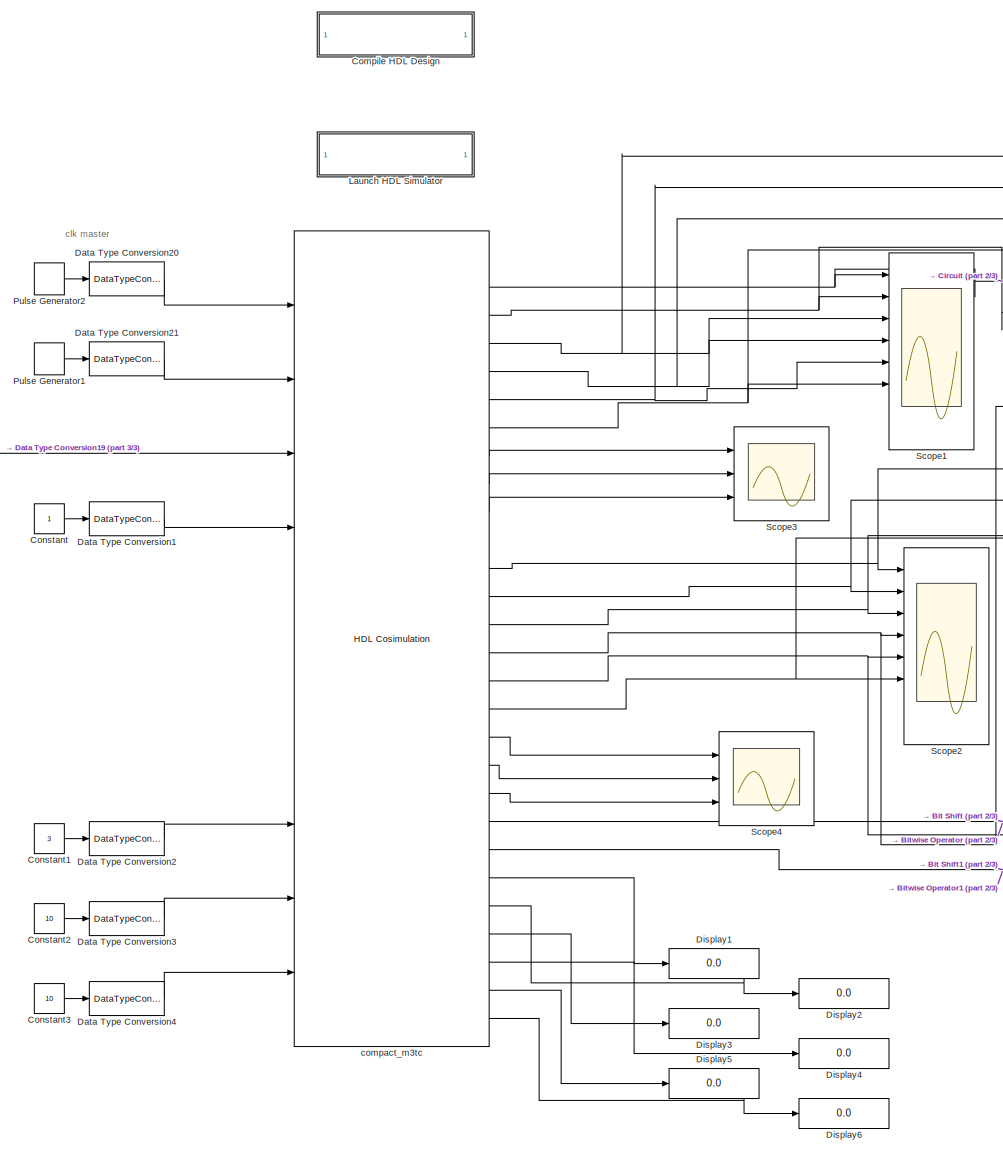
[diagram: root canvas - part 1/3, center side, full height]
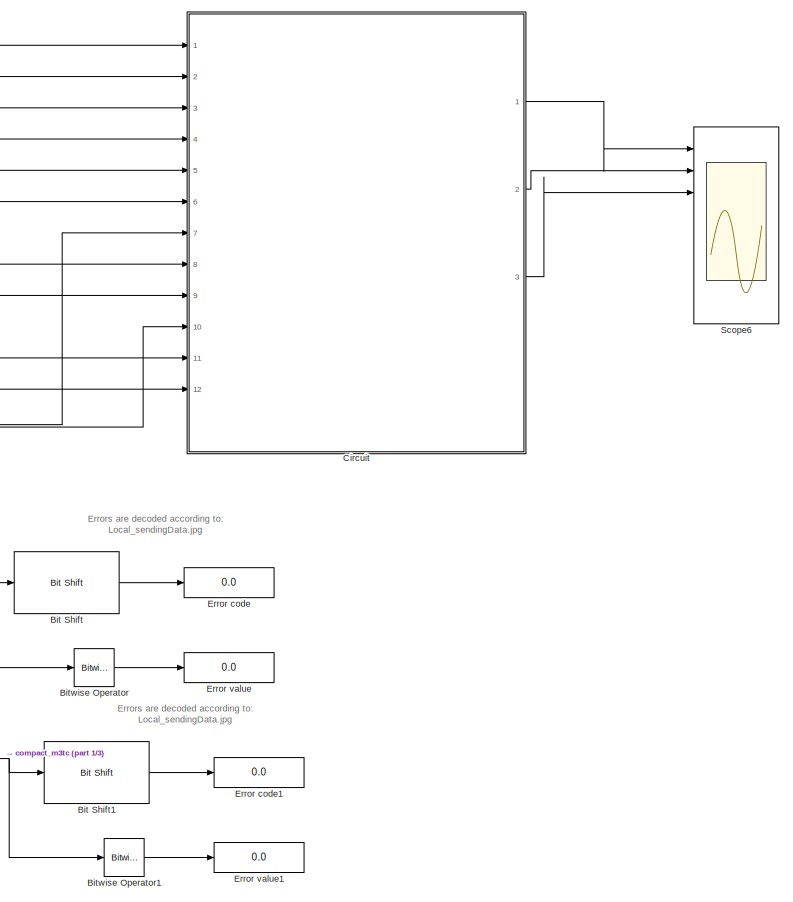
[diagram: root canvas - part 2/3, right side, full height]
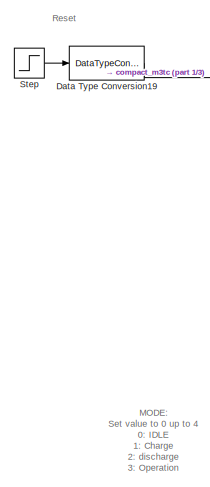
[diagram: root canvas - part 3/3, middle left region]
MODEL slx_5d1375948015
KIND model
CONFIG AbsTol = auto
CONFIG EnableMultiTasking = off
CONFIG FixedStep = 10e-9
CONFIG MaxStep = auto
CONFIG MinStep = auto
CONFIG RelTol = 1e-3
CONFIG SampleTimeConstraint = Unconstrained
CONFIG Solver = FixedStepDiscrete
CONFIG SolverName = FixedStepDiscrete
CONFIG StartTime = 0.0
CONFIG StopTime = 3000e-6
BLOCK [Reference] Bit Shift  REF=hdlsllib/HDL Operations/Bit Shift
  Ports = [1, 1]
  SourceBlock = hdlsllib/HDL Operations/Bit Shift
  SourceType = Bit Shift
BLOCK [Reference] Bit Shift1  REF=hdlsllib/HDL Operations/Bit Shift
  Ports = [1, 1]
  SourceBlock = hdlsllib/HDL Operations/Bit Shift
  SourceType = Bit Shift
BLOCK [Reference] Bitwise Operator  REF=simulink/Logic and Bit
Operations/Bitwise
Operator
  Ports = [1, 1]
  SourceBlock = simulink/Logic and Bit\nOperations/Bitwise\nOperator
  SourceType = Bitwise Operator
BLOCK [Reference] Bitwise Operator1  REF=simulink/Logic and Bit
Operations/Bitwise
Operator
  Ports = [1, 1]
  SourceBlock = simulink/Logic and Bit\nOperations/Bitwise\nOperator
  SourceType = Bitwise Operator
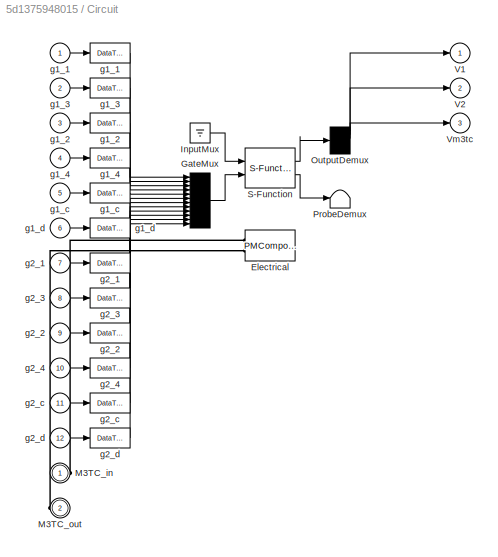
BLOCK [SubSystem] Circuit
  CopyFcn = plecs('sl', 203);
  DeleteFcn = plecs('sl', 205);
  DestroyFcn = plecs('sl', 207);
  ErrorFcn = plerrorfcn
  InitFcn = plecs('sl', 214);
  LoadFcn = plecs('sl', 200);
  NameChangeFcn = plecs('sl', 210);
  OpenFcn = plecs('sl', 202);
  Ports = [12, 3, 0, 0, 0, 1, 1]
  PostSaveFcn = plecs('sl', 201);
  PreCopyFcn = plecs('sl', 216);
  PreSaveFcn = plecs('sl', 211);
  RequestExecContextInheritance = off
  StartFcn = plecs('sl', 208);
  StopFcn = plecs('sl', 209);
  UndoDeleteFcn = plecs('sl', 206);
  Variant = off
BLOCK [PMComponent] Circuit/ Electrical 
  LConnTagsString = __newl1|__newl2
  LeftPortType = electrical
  PhysicalDomain = plecsdomain
  Ports = [0, 0, 0, 0, 0, 2]
  RightPortType = blob
BLOCK [Mux] Circuit/ GateMux 
  Inputs = [ 1 1 1 1 1 1 1 1 1 1 1 1 ]
  Ports = [12, 1]
BLOCK [Ground] Circuit/ InputMux 
BLOCK [Demux] Circuit/ OutputDemux 
  Outputs = [ 1 1 1 1 1 1 ]
  Ports = [1, 6]
BLOCK [Terminator] Circuit/ ProbeDemux 
BLOCK [S-Function] Circuit/ S-Function 
  EnableBusSupport = off
  FunctionName = plecs
  Ports = [2, 2]
  SFcnIsStateOwnerBlock = off
  SFunctionDeploymentMode = off
BLOCK [DataTypeConversion] Circuit/ g1_1 
BLOCK [DataTypeConversion] Circuit/ g1_2 
BLOCK [DataTypeConversion] Circuit/ g1_3 
BLOCK [DataTypeConversion] Circuit/ g1_4 
BLOCK [DataTypeConversion] Circuit/ g1_c 
BLOCK [DataTypeConversion] Circuit/ g1_d 
BLOCK [DataTypeConversion] Circuit/ g2_1 
BLOCK [DataTypeConversion] Circuit/ g2_2 
BLOCK [DataTypeConversion] Circuit/ g2_3 
BLOCK [DataTypeConversion] Circuit/ g2_4 
BLOCK [DataTypeConversion] Circuit/ g2_c 
BLOCK [DataTypeConversion] Circuit/ g2_d 
BLOCK [PMIOPort] Circuit/M3TC_in
  Port = 1
  Side = Left
BLOCK [PMIOPort] Circuit/M3TC_out
  Port = 2
  Side = Right
BLOCK [Outport] Circuit/V1
  IconDisplay = Port number
  PortDimensions = 1
BLOCK [Outport] Circuit/V2
  IconDisplay = Port number
  Port = 2
  PortDimensions = 1
BLOCK [Outport] Circuit/Vm3tc
  IconDisplay = Port number
  Port = 3
  PortDimensions = 1
BLOCK [Inport] Circuit/g1_1
  IconDisplay = Port number
  PortDimensions = 1
BLOCK [Inport] Circuit/g1_2
  IconDisplay = Port number
  Port = 3
  PortDimensions = 1
BLOCK [Inport] Circuit/g1_3
  IconDisplay = Port number
  Port = 2
  PortDimensions = 1
BLOCK [Inport] Circuit/g1_4
  IconDisplay = Port number
  Port = 4
  PortDimensions = 1
BLOCK [Inport] Circuit/g1_c
  IconDisplay = Port number
  Port = 5
  PortDimensions = 1
BLOCK [Inport] Circuit/g1_d
  IconDisplay = Port number
  Port = 6
  PortDimensions = 1
BLOCK [Inport] Circuit/g2_1
  IconDisplay = Port number
  Port = 7
  PortDimensions = 1
BLOCK [Inport] Circuit/g2_2
  IconDisplay = Port number
  Port = 9
  PortDimensions = 1
BLOCK [Inport] Circuit/g2_3
  IconDisplay = Port number
  Port = 8
  PortDimensions = 1
BLOCK [Inport] Circuit/g2_4
  IconDisplay = Port number
  Port = 10
  PortDimensions = 1
BLOCK [Inport] Circuit/g2_c
  IconDisplay = Port number
  Port = 11
  PortDimensions = 1
BLOCK [Inport] Circuit/g2_d
  IconDisplay = Port number
  Port = 12
  PortDimensions = 1
BLOCK [SubSystem] Compile HDL Design
  OpenFcn = eval('compile_hdl_design_compact_m3tc');
  Ports = []
  RequestExecContextInheritance = off
  Variant = off
BLOCK [Constant] Constant
  SampleTime = 10e-9
BLOCK [Constant] Constant1
  SampleTime = 10e-9
  Value = 3
BLOCK [Constant] Constant2
  SampleTime = 10e-9
  Value = 10
BLOCK [Constant] Constant3
  SampleTime = 10e-9
  Value = 10
BLOCK [DataTypeConversion] Data Type Conversion1
  RndMeth = Floor
  SaturateOnIntegerOverflow = off
BLOCK [DataTypeConversion] Data Type Conversion19
  RndMeth = Floor
  SaturateOnIntegerOverflow = off
BLOCK [DataTypeConversion] Data Type Conversion2
  RndMeth = Floor
  SaturateOnIntegerOverflow = off
BLOCK [DataTypeConversion] Data Type Conversion20
  RndMeth = Floor
  SaturateOnIntegerOverflow = off
BLOCK [DataTypeConversion] Data Type Conversion21
  RndMeth = Floor
  SaturateOnIntegerOverflow = off
BLOCK [DataTypeConversion] Data Type Conversion3
  RndMeth = Floor
  SaturateOnIntegerOverflow = off
BLOCK [DataTypeConversion] Data Type Conversion4
  RndMeth = Floor
  SaturateOnIntegerOverflow = off
BLOCK [Display] Display1
  Decimation = 1
  Ports = [1]
BLOCK [Display] Display2
  Decimation = 1
  Ports = [1]
BLOCK [Display] Display3
  Decimation = 1
  Ports = [1]
BLOCK [Display] Display4
  Decimation = 1
  Ports = [1]
BLOCK [Display] Display5
  Decimation = 1
  Ports = [1]
BLOCK [Display] Display6
  Decimation = 1
  Ports = [1]
BLOCK [Display] Error code
  Decimation = 1
  Ports = [1]
BLOCK [Display] Error code1
  Decimation = 1
  Ports = [1]
BLOCK [Display] Error value
  Decimation = 1
  Ports = [1]
BLOCK [Display] Error value1
  Decimation = 1
  Ports = [1]
BLOCK [SubSystem] Launch HDL Simulator
  OpenFcn = eval('launch_hdl_simulator_compact_m3tc');
  Ports = []
  RequestExecContextInheritance = off
  Variant = off
BLOCK [DiscretePulseGenerator] Pulse Generator1
  Period = 20e-9
  PhaseDelay = 10e-9
  Ports = [0, 1]
  PulseType = Time based
  PulseWidth = 50
BLOCK [DiscretePulseGenerator] Pulse Generator2
  Period = 20e-9
  PhaseDelay = 10e-9
  Ports = [0, 1]
  PulseType = Time based
  PulseWidth = 50
BLOCK [Scope] Scope1
  NumInputPorts = 8
  Ports = [8]
  ScopeSpecificationString = Simulink.scopes.TimeScopeBlockCfg('CurrentConfiguration', extmgr.ConfigurationSet(extmgr.Configuration('Core','General UI',true),extmgr.Configuration('Core','Source UI',true),extmgr.Configuration('Sources','WiredSimulink',true,'DataLoggingVariableName','ScopeData2'),extmgr.Configuration('Visuals','Time Domain',true,'SerializedDisplays',{struct('MinYLimReal','-0.125','MaxYLimReal','1.125','YLabelRe...<+6692ch>
BLOCK [Scope] Scope2
  NumInputPorts = 8
  Ports = [8]
  ScopeSpecificationString = Simulink.scopes.TimeScopeBlockCfg('CurrentConfiguration', extmgr.ConfigurationSet(extmgr.Configuration('Core','General UI',true),extmgr.Configuration('Core','Source UI',true),extmgr.Configuration('Sources','WiredSimulink',true,'DataLoggingVariableName','ScopeData3'),extmgr.Configuration('Visuals','Time Domain',true,'SerializedDisplays',{struct('MinYLimReal','-0.125','MaxYLimReal','1.125','YLabelRe...<+6663ch>
BLOCK [Scope] Scope3
  NumInputPorts = 3
  Ports = [3]
  ScopeSpecificationString = C++SS(StrPVP('SaveName','ScopeData4'),StrPVP('LimitDataPoints','on'),StrPVP('DataFormat','Array'),StrPVP('Decimation','1'),StrPVP('BlockParamSampleInput','off'),StrPVP('SaveName','ScopeData4'),StrPVP('SaveName','ScopeData4'))
BLOCK [Scope] Scope4
  NumInputPorts = 3
  Ports = [3]
  ScopeSpecificationString = C++SS(StrPVP('SaveName','ScopeData5'),StrPVP('LimitDataPoints','on'),StrPVP('DataFormat','Array'),StrPVP('Decimation','1'),StrPVP('BlockParamSampleInput','off'),StrPVP('SaveName','ScopeData5'),StrPVP('SaveName','ScopeData5'))
BLOCK [Scope] Scope6
  NumInputPorts = 8
  Ports = [8]
  ScopeSpecificationString = Simulink.scopes.TimeScopeBlockCfg('CurrentConfiguration', extmgr.ConfigurationSet(extmgr.Configuration('Core','General UI',true),extmgr.Configuration('Core','Source UI',true),extmgr.Configuration('Sources','WiredSimulink',true),extmgr.Configuration('Visuals','Time Domain',true,'SerializedDisplays',{struct('MinYLimReal','499.99078','MaxYLimReal','500.00102','YLabelReal','','MinYLimMag','499.99078',...<+6700ch>
BLOCK [Step] Step
  SampleTime = 10e-9
  Time = 100e-9
BLOCK [Reference] compact_m3tc  REF=modelsimlib/HDL Cosimulation
  Ports = [10, 28]
  SourceBlock = modelsimlib/HDL Cosimulation
  SourceType = Simulink and ModelSim Cosimulation
ANNOTATION (root): Errors are decoded according to: Local_sendingData.jpg
ANNOTATION (root): MODE: Set value to 0 up to 4 0: IDLE 1: Charge 2: discharge 3: Operation 4: reset
ANNOTATION (root): Reset
ANNOTATION (root): clk master
LINE Bit Shift1:1 -> Error code1:1
LINE Bit Shift:1 -> Error code:1
LINE Bitwise Operator1:1 -> Error value1:1
LINE Bitwise Operator:1 -> Error value:1
LINE Circuit:1 -> Scope6:1
LINE Circuit:2 -> Scope6:2
LINE Circuit:3 -> Scope6:3
LINE Constant1:1 -> Data Type Conversion2:1
LINE Constant2:1 -> Data Type Conversion3:1
LINE Constant3:1 -> Data Type Conversion4:1
LINE Constant:1 -> Data Type Conversion1:1
LINE Data Type Conversion19:1 -> compact_m3tc:3
LINE Data Type Conversion1:1 -> compact_m3tc:4
LINE Data Type Conversion20:1 -> compact_m3tc:1
LINE Data Type Conversion21:1 -> compact_m3tc:2
LINE Data Type Conversion2:1 -> compact_m3tc:8
LINE Data Type Conversion3:1 -> compact_m3tc:9
LINE Data Type Conversion4:1 -> compact_m3tc:10
LINE Pulse Generator1:1 -> Data Type Conversion21:1
LINE Pulse Generator2:1 -> Data Type Conversion20:1
LINE Step:1 -> Data Type Conversion19:1
LINE compact_m3tc:10 -> Scope3:3
NET compact_m3tc:12 -> Circuit:11, Scope2:1
NET compact_m3tc:13 -> Circuit:12, Scope2:2
NET compact_m3tc:14 -> Circuit:7, Scope2:3
NET compact_m3tc:15 -> Circuit:9, Scope2:4
NET compact_m3tc:16 -> Circuit:8, Scope2:5
NET compact_m3tc:17 -> Circuit:10, Scope2:6
LINE compact_m3tc:18 -> Scope4:1
LINE compact_m3tc:19 -> Scope4:2
NET compact_m3tc:2 -> Circuit:5, Scope1:1
LINE compact_m3tc:20 -> Scope4:3
NET compact_m3tc:21 -> Bit Shift:1, Bitwise Operator:1
NET compact_m3tc:22 -> Bit Shift1:1, Bitwise Operator1:1
LINE compact_m3tc:23 -> Display1:1
LINE compact_m3tc:24 -> Display2:1
LINE compact_m3tc:25 -> Display3:1
LINE compact_m3tc:26 -> Display4:1
LINE compact_m3tc:27 -> Display5:1
LINE compact_m3tc:28 -> Display6:1
NET compact_m3tc:3 -> Circuit:6, Scope1:2
NET compact_m3tc:4 -> Circuit:1, Scope1:3
NET compact_m3tc:5 -> Circuit:3, Scope1:4
NET compact_m3tc:6 -> Circuit:2, Scope1:5
NET compact_m3tc:7 -> Circuit:4, Scope1:6
LINE compact_m3tc:8 -> Scope3:1
LINE compact_m3tc:9 -> Scope3:2
note: NET lines group one-source signal fan-out (src -> all destinations, sorted); 1:1 wires keep LINE
